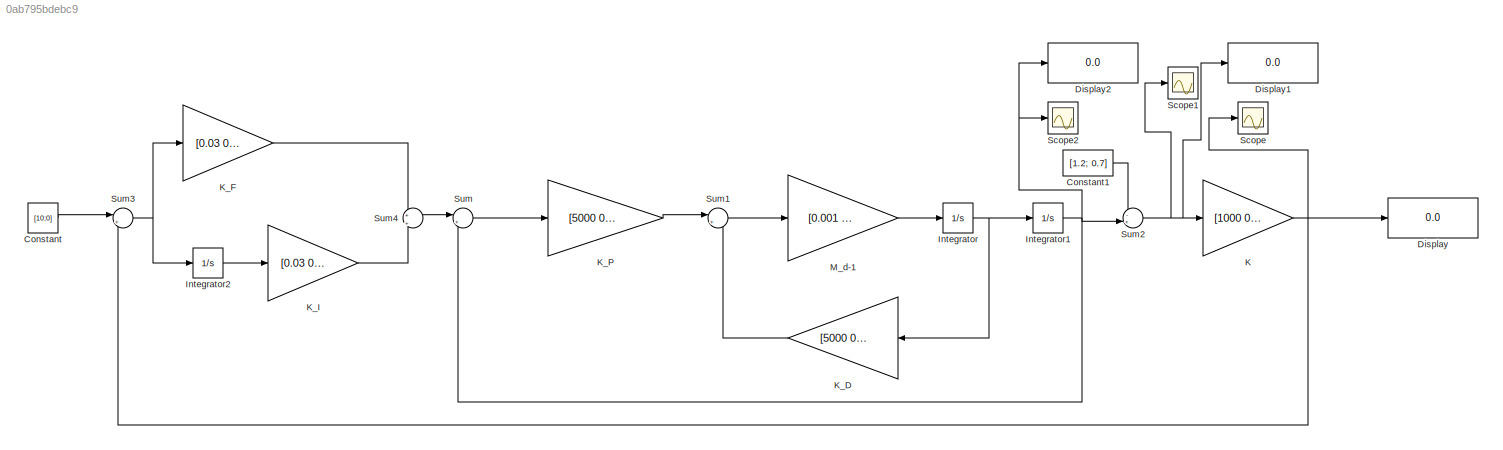
MODEL slx_0ab795bdebc9
KIND model
CONFIG AbsTol = auto
CONFIG EnableMultiTasking = off
CONFIG FixedStep = auto
CONFIG MaxStep = auto
CONFIG MinStep = auto
CONFIG RelTol = 1e-3
CONFIG SampleTimeConstraint = Unconstrained
CONFIG SolverName = VariableStepAuto
CONFIG StartTime = 0.0
CONFIG StopTime = 10.0
BLOCK [Constant] Constant
  Value = [10;0]
BLOCK [Constant] Constant1
  Value = [1.2; 0.7]
BLOCK [Display] Display
  Decimation = 1
BLOCK [Display] Display1
  Decimation = 1
BLOCK [Display] Display2
  Decimation = 1
BLOCK [Integrator] Integrator
  InitialCondition = [0;0]
BLOCK [Integrator] Integrator1
  InitialCondition = [1.3; 0.7]
BLOCK [Integrator] Integrator2
BLOCK [Gain] K
  Gain = [1000 0;0 0]
  Multiplication = Matrix(K*u)
BLOCK [Gain] K_D
  Gain = [5000 0;0 5000]
  Multiplication = Matrix(K*u)
BLOCK [Gain] K_F
  Gain = [0.03 0;0 0]
  Multiplication = Matrix(K*u)
BLOCK [Gain] K_I
  Gain = [0.03 0;0 0]
  Multiplication = Matrix(K*u)
BLOCK [Gain] K_P
  Gain = [5000 0;0 5000]
  Multiplication = Matrix(K*u)
BLOCK [Gain] M_d-1
  Gain = [0.001 0;0 0.001]
  Multiplication = Matrix(K*u)
BLOCK [Scope] Scope
  Floating = off
  NumInputPorts = 1
  ScopeSpecificationString = Simulink.scopes.TimeScopeBlockCfg('CurrentConfiguration', extmgr.ConfigurationSet(extmgr.Configuration('Core','General UI',true),extmgr.Configuration('Core','Source UI',true),extmgr.Configuration('Sources','WiredSimulink',true),extmgr.Configuration('Visuals','Time Domain',true,'SerializedDisplays',{struct('MinYLimReal','-130.93184','MaxYLimReal','178.38654','YLabelReal','','MinYLimMag',' 0.00000',...<+1343ch>
BLOCK [Scope] Scope1
  Floating = off
  NumInputPorts = 1
  ScopeSpecificationString = Simulink.scopes.TimeScopeBlockCfg('CurrentConfiguration', extmgr.ConfigurationSet(extmgr.Configuration('Core','General UI',true),extmgr.Configuration('Core','Source UI',true),extmgr.Configuration('Sources','WiredSimulink',true,'DataLoggingVariableName','ScopeData1'),extmgr.Configuration('Visuals','Time Domain',true,'SerializedDisplays',{struct('MinYLimReal','-0.80593','MaxYLimReal','0.25339','YLab...<+1401ch>
BLOCK [Scope] Scope2
  Floating = off
  NumInputPorts = 1
  ScopeSpecificationString = Simulink.scopes.TimeScopeBlockCfg('CurrentConfiguration', extmgr.ConfigurationSet(extmgr.Configuration('Core','General UI',true),extmgr.Configuration('Core','Source UI',true),extmgr.Configuration('Sources','WiredSimulink',true,'DataLoggingVariableName','ScopeData1'),extmgr.Configuration('Visuals','Time Domain',true,'SerializedDisplays',{struct('MinYLimReal','-0.19343','MaxYLimReal','1.74089','YLab...<+1415ch>
BLOCK [Sum] Sum
  Inputs = |+-
BLOCK [Sum] Sum1
  Inputs = |+-
BLOCK [Sum] Sum2
  Inputs = -+|
BLOCK [Sum] Sum3
  Inputs = |+-
BLOCK [Sum] Sum4
  Inputs = +|+
LINE Constant1:1 -> Sum2:1
LINE Constant:1 -> Sum3:1
NET Integrator1:1 -> Display2:1, Scope2:1, Sum2:2, Sum:2
LINE Integrator2:1 -> K_I:1
NET Integrator:1 -> Integrator1:1, K_D:1
NET K:1 -> Display:1, Scope:1, Sum3:2
LINE K_D:1 -> Sum1:2
LINE K_F:1 -> Sum4:1
LINE K_I:1 -> Sum4:2
LINE K_P:1 -> Sum1:1
LINE M_d-1:1 -> Integrator:1
LINE Sum1:1 -> M_d-1:1
NET Sum2:1 -> Display1:1, K:1, Scope1:1
NET Sum3:1 -> Integrator2:1, K_F:1
LINE Sum4:1 -> Sum:1
LINE Sum:1 -> K_P:1
note: NET lines group one-source signal fan-out (src -> all destinations, sorted); 1:1 wires keep LINE
